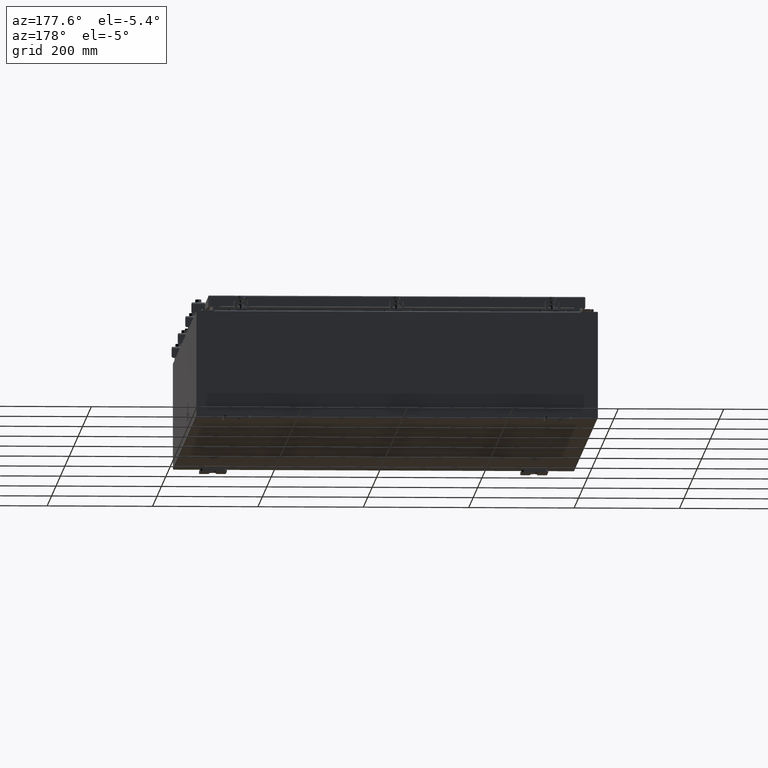
[diagram: clean part render]
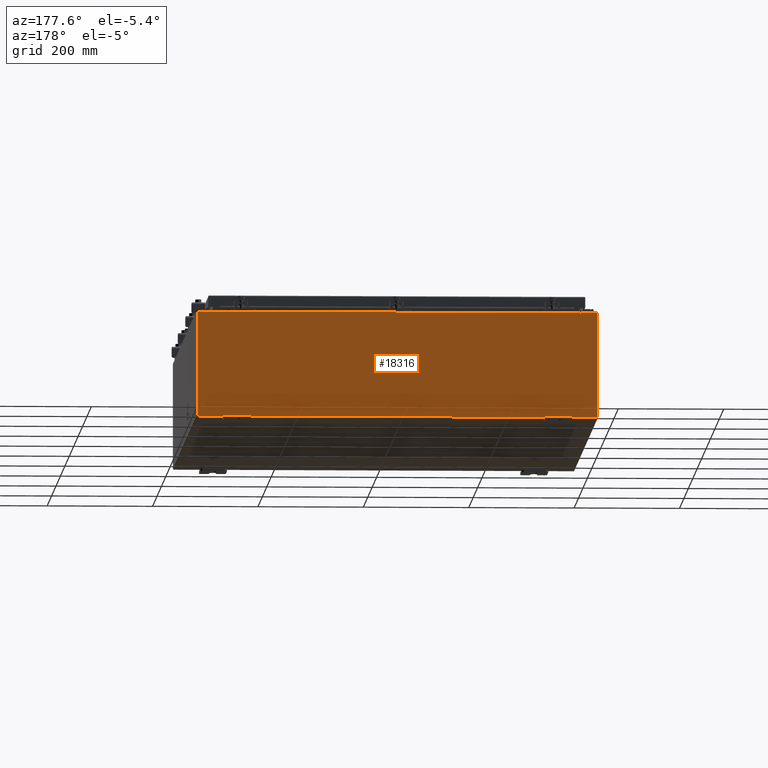
[diagram: same view with one face highlighted and labeled with its STEP entity id]
A machine part, auxiliary view. The second image highlights one B-rep face of the part: STEP entity #18316.
In plain terms, the highlighted planar face has unit normal (0, -1, 0).
Its self-contained STEP definition (entity closure, byte-faithful):
#531 = EDGE_CURVE ( 'NONE', #3929, #36585, #26573, .T. ) ;
#1752 = VERTEX_POINT ( 'NONE', #39713 ) ;
#2299 = EDGE_CURVE ( 'NONE', #34502, #36585, #33330, .T. ) ;
#3884 = CARTESIAN_POINT ( 'NONE',  ( -14.92529999999999800, 0.0000000000000000000, 3.925299999999999600 ) ) ;
#3929 = VERTEX_POINT ( 'NONE', #44362 ) ;
#4029 = DIRECTION ( 'NONE',  ( 0.0000000000000000000, 0.0000000000000000000, 1.000000000000000000 ) ) ;
#4942 = ORIENTED_EDGE ( 'NONE', *, *, #2299, .T. ) ;
#5657 = CARTESIAN_POINT ( 'NONE',  ( 14.92530000000000200, 0.0000000000000000000, -3.925299999999999600 ) ) ;
#5915 = EDGE_CURVE ( 'NONE', #34502, #45775, #21631, .T. ) ;
#6031 = PLANE ( 'NONE',  #32672 ) ;
#7077 = CARTESIAN_POINT ( 'NONE',  ( -14.92529999999999800, 0.0000000000000000000, 3.925299999999999600 ) ) ;
#7140 = VECTOR ( 'NONE', #22221, 39.37007874015748100 ) ;
#7324 = VECTOR ( 'NONE', #32960, 39.37007874015748100 ) ;
#8142 = LINE ( 'NONE', #14798, #36358 ) ;
#9323 = VERTEX_POINT ( 'NONE', #31511 ) ;
#9603 = VERTEX_POINT ( 'NONE', #30480 ) ;
#9730 = DIRECTION ( 'NONE',  ( 0.0000000000000000000, -0.0000000000000000000, -1.000000000000000000 ) ) ;
#10568 = CARTESIAN_POINT ( 'NONE',  ( 14.92530000000000200, 0.0000000000000000000, 3.925299999999999600 ) ) ;
#10670 = CARTESIAN_POINT ( 'NONE',  ( 13.67455000000000200, 0.0000000000000000000, 3.874949999999999700 ) ) ;
#10771 = DIRECTION ( 'NONE',  ( -0.0000000000000000000, -0.0000000000000000000, 1.000000000000000000 ) ) ;
#10787 = CARTESIAN_POINT ( 'NONE',  ( -14.92529999999999800, 0.0000000000000000000, -3.925299999999999600 ) ) ;
#11108 = ORIENTED_EDGE ( 'NONE', *, *, #27420, .F. ) ;
#11503 = ORIENTED_EDGE ( 'NONE', *, *, #26790, .T. ) ;
#11818 = CARTESIAN_POINT ( 'NONE',  ( -13.63719999999999600, -0.0000000000000000000, 0.0000000000000000000 ) ) ;
#12583 = VECTOR ( 'NONE', #19051, 39.37007874015748100 ) ;
#12682 = LINE ( 'NONE', #7077, #31130 ) ;
#13269 = CARTESIAN_POINT ( 'NONE',  ( 0.0000000000000000000, 0.0000000000000000000, 0.0000000000000000000 ) ) ;
#14286 = LINE ( 'NONE', #14809, #43664 ) ;
#14798 = CARTESIAN_POINT ( 'NONE',  ( -13.67454999999999500, -0.0000000000000000000, 0.0000000000000000000 ) ) ;
#14809 = CARTESIAN_POINT ( 'NONE',  ( 13.67454999999983300, -0.0000000000000000000, -5.935537951421816200E-013 ) ) ;
#14874 = DIRECTION ( 'NONE',  ( 0.0000000000000000000, 0.0000000000000000000, -1.000000000000000000 ) ) ;
#15143 = CARTESIAN_POINT ( 'NONE',  ( 13.63720000000000400, 0.0000000000000000000, 0.0000000000000000000 ) ) ;
#15599 = EDGE_CURVE ( 'NONE', #1752, #34284, #12682, .T. ) ;
#15758 = VECTOR ( 'NONE', #14874, 39.37007874015748100 ) ;
#16010 = DIRECTION ( 'NONE',  ( -0.0000000000000000000, 1.000000000000000000, -0.0000000000000000000 ) ) ;
#16512 = FACE_OUTER_BOUND ( 'NONE', #18053, .T. ) ;
#17740 = LINE ( 'NONE', #10787, #26403 ) ;
#18053 = EDGE_LOOP ( 'NONE', ( #36042, #11108, #23597, #4942, #37243, #23497, #47175, #38997, #11503, #28893, #34450, #44184 ) ) ;
#18245 = LINE ( 'NONE', #25527, #7324 ) ;
#18316 = ADVANCED_FACE ( 'NONE', ( #16512 ), #6031, .F. ) ;
#19051 = DIRECTION ( 'NONE',  ( 1.000000000000000000, 0.0000000000000000000, 0.0000000000000000000 ) ) ;
#19216 = DIRECTION ( 'NONE',  ( 0.0000000000000000000, 0.0000000000000000000, -1.000000000000000000 ) ) ;
#20780 = VERTEX_POINT ( 'NONE', #5657 ) ;
#21631 = LINE ( 'NONE', #11818, #47560 ) ;
#21875 = DIRECTION ( 'NONE',  ( -1.000000000000000000, -0.0000000000000000000, -0.0000000000000000000 ) ) ;
#22058 = CARTESIAN_POINT ( 'NONE',  ( -13.65587499999999600, 0.0000000000000000000, 3.874949999999999700 ) ) ;
#22221 = DIRECTION ( 'NONE',  ( 1.000000000000000000, 0.0000000000000000000, 0.0000000000000000000 ) ) ;
#23497 = ORIENTED_EDGE ( 'NONE', *, *, #46601, .F. ) ;
#23597 = ORIENTED_EDGE ( 'NONE', *, *, #5915, .F. ) ;
#23846 = DIRECTION ( 'NONE',  ( -0.0000000000000000000, 1.000000000000000000, -0.0000000000000000000 ) ) ;
#25493 = VERTEX_POINT ( 'NONE', #40934 ) ;
#25511 = LINE ( 'NONE', #36961, #15758 ) ;
#25527 = CARTESIAN_POINT ( 'NONE',  ( -14.92529999999999800, 0.0000000000000000000, 3.925299999999999600 ) ) ;
#25752 = DIRECTION ( 'NONE',  ( 0.0000000000000000000, 0.0000000000000000000, -1.000000000000000000 ) ) ;
#26319 = CARTESIAN_POINT ( 'NONE',  ( -13.63719999999999600, 1.024442997624098700E-016, 3.912299999999999700 ) ) ;
#26403 = VECTOR ( 'NONE', #21875, 39.37007874015748100 ) ;
#26573 = LINE ( 'NONE', #15143, #31779 ) ;
#26790 = EDGE_CURVE ( 'NONE', #36162, #20780, #25511, .T. ) ;
#27109 = AXIS2_PLACEMENT_3D ( 'NONE', #38118, #16010, #41783 ) ;
#27420 = EDGE_CURVE ( 'NONE', #45775, #9323, #28364, .T. ) ;
#28364 = CIRCLE ( 'NONE', #30874, 0.01867499999999949400 ) ;
#28893 = ORIENTED_EDGE ( 'NONE', *, *, #37400, .T. ) ;
#30480 = CARTESIAN_POINT ( 'NONE',  ( 13.67455000000000400, 0.0000000000000000000, 3.925299999999999600 ) ) ;
#30874 = AXIS2_PLACEMENT_3D ( 'NONE', #22058, #23846, #25752 ) ;
#31130 = VECTOR ( 'NONE', #10771, 39.37007874015748100 ) ;
#31511 = CARTESIAN_POINT ( 'NONE',  ( -13.67454999999999500, 0.0000000000000000000, 3.874949999999999700 ) ) ;
#31779 = VECTOR ( 'NONE', #4029, 39.37007874015748100 ) ;
#31815 = DIRECTION ( 'NONE',  ( 0.0000000000000000000, -1.000000000000000000, 0.0000000000000000000 ) ) ;
#32672 = AXIS2_PLACEMENT_3D ( 'NONE', #13269, #31815, #9730 ) ;
#32960 = DIRECTION ( 'NONE',  ( 1.000000000000000000, 0.0000000000000000000, 0.0000000000000000000 ) ) ;
#33330 = LINE ( 'NONE', #37457, #12583 ) ;
#34156 = EDGE_CURVE ( 'NONE', #34284, #25493, #36524, .T. ) ;
#34284 = VERTEX_POINT ( 'NONE', #45113 ) ;
#34450 = ORIENTED_EDGE ( 'NONE', *, *, #15599, .T. ) ;
#34502 = VERTEX_POINT ( 'NONE', #26319 ) ;
#35305 = CIRCLE ( 'NONE', #27109, 0.01867499999999949400 ) ;
#36042 = ORIENTED_EDGE ( 'NONE', *, *, #47533, .F. ) ;
#36162 = VERTEX_POINT ( 'NONE', #10568 ) ;
#36358 = VECTOR ( 'NONE', #44256, 39.37007874015748100 ) ;
#36524 = LINE ( 'NONE', #3884, #7140 ) ;
#36585 = VERTEX_POINT ( 'NONE', #42740 ) ;
#36750 = VERTEX_POINT ( 'NONE', #10670 ) ;
#36860 = CARTESIAN_POINT ( 'NONE',  ( -13.63719999999999600, -0.0000000000000000000, 3.874949999999999700 ) ) ;
#36881 = DIRECTION ( 'NONE',  ( -4.340572780400004900E-014, 0.0000000000000000000, -1.000000000000000000 ) ) ;
#36961 = CARTESIAN_POINT ( 'NONE',  ( 14.92530000000000200, 0.0000000000000000000, 3.925299999999999600 ) ) ;
#37243 = ORIENTED_EDGE ( 'NONE', *, *, #531, .F. ) ;
#37400 = EDGE_CURVE ( 'NONE', #20780, #1752, #17740, .T. ) ;
#37457 = CARTESIAN_POINT ( 'NONE',  ( -13.63719999999999800, 1.024442997624098700E-016, 3.912299999999999700 ) ) ;
#37468 = EDGE_CURVE ( 'NONE', #9603, #36750, #14286, .T. ) ;
#38052 = EDGE_CURVE ( 'NONE', #9603, #36162, #18245, .T. ) ;
#38118 = CARTESIAN_POINT ( 'NONE',  ( 13.65587500000000200, 0.0000000000000000000, 3.874949999999999700 ) ) ;
#38997 = ORIENTED_EDGE ( 'NONE', *, *, #38052, .T. ) ;
#39713 = CARTESIAN_POINT ( 'NONE',  ( -14.92529999999999800, 0.0000000000000000000, -3.925299999999999600 ) ) ;
#40934 = CARTESIAN_POINT ( 'NONE',  ( -13.67454999999999500, 0.0000000000000000000, 3.925299999999999600 ) ) ;
#41783 = DIRECTION ( 'NONE',  ( 0.0000000000000000000, 0.0000000000000000000, -1.000000000000000000 ) ) ;
#42740 = CARTESIAN_POINT ( 'NONE',  ( 13.63720000000000400, 0.0000000000000000000, 3.912299999999999700 ) ) ;
#43664 = VECTOR ( 'NONE', #36881, 39.37007874015748100 ) ;
#44184 = ORIENTED_EDGE ( 'NONE', *, *, #34156, .T. ) ;
#44256 = DIRECTION ( 'NONE',  ( 0.0000000000000000000, 0.0000000000000000000, 1.000000000000000000 ) ) ;
#44362 = CARTESIAN_POINT ( 'NONE',  ( 13.63720000000000400, 0.0000000000000000000, 3.874949999999999700 ) ) ;
#45113 = CARTESIAN_POINT ( 'NONE',  ( -14.92529999999999800, 0.0000000000000000000, 3.925299999999999600 ) ) ;
#45775 = VERTEX_POINT ( 'NONE', #36860 ) ;
#46601 = EDGE_CURVE ( 'NONE', #36750, #3929, #35305, .T. ) ;
#47175 = ORIENTED_EDGE ( 'NONE', *, *, #37468, .F. ) ;
#47533 = EDGE_CURVE ( 'NONE', #9323, #25493, #8142, .T. ) ;
#47560 = VECTOR ( 'NONE', #19216, 39.37007874015748100 ) ;